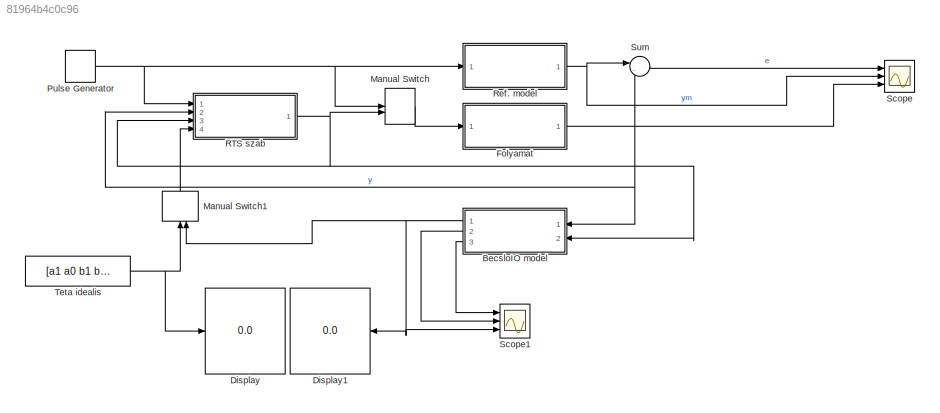
MODEL slx_81964b4c0c96
KIND model
CONFIG AbsTol = auto
CONFIG EnableMultiTasking = on
CONFIG FixedStep = 0.5
CONFIG MaxStep = auto
CONFIG MinStep = auto
CONFIG RelTol = 1e-3
CONFIG SampleTimeConstraint = Unconstrained
CONFIG Solver = FixedStepDiscrete
CONFIG SolverName = FixedStepDiscrete
CONFIG StartTime = 0.0
CONFIG StopTime = 100
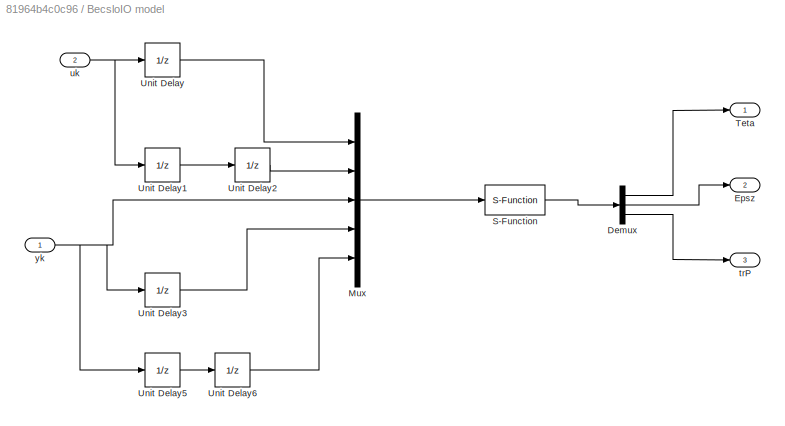
BLOCK [SubSystem] BecsloIO model
  Ports = [2, 3]
  RequestExecContextInheritance = off
BLOCK [Demux] BecsloIO model/Demux
  DisplayOption = bar
  Outputs = [4 1 1]
  Ports = [1, 3]
BLOCK [Outport] BecsloIO model/Epsz
  IconDisplay = Port number
  Port = 2
BLOCK [Mux] BecsloIO model/Mux
  DisplayOption = bar
  Inputs = 5
  Ports = [5, 1]
BLOCK [S-Function] BecsloIO model/S-Function
  EnableBusSupport = off
  FunctionName = BecsloIO
  Ports = [1, 1]
  SFcnIsStateOwnerBlock = off
  SFunctionDeploymentMode = off
BLOCK [Outport] BecsloIO model/Teta
  IconDisplay = Port number
BLOCK [UnitDelay] BecsloIO model/Unit Delay
  InputProcessing = Elements as channels (sample based)
  SampleTime = 0.5
BLOCK [UnitDelay] BecsloIO model/Unit Delay1
  InputProcessing = Elements as channels (sample based)
  SampleTime = 0.5
BLOCK [UnitDelay] BecsloIO model/Unit Delay2
  InputProcessing = Elements as channels (sample based)
  SampleTime = 0.5
BLOCK [UnitDelay] BecsloIO model/Unit Delay3
  InputProcessing = Elements as channels (sample based)
  SampleTime = 0.5
BLOCK [UnitDelay] BecsloIO model/Unit Delay5
  InputProcessing = Elements as channels (sample based)
  SampleTime = 0.5
BLOCK [UnitDelay] BecsloIO model/Unit Delay6
  InputProcessing = Elements as channels (sample based)
  SampleTime = 0.5
BLOCK [Outport] BecsloIO model/trP 
  IconDisplay = Port number
  Port = 3
BLOCK [Inport] BecsloIO model/uk
  IconDisplay = Port number
  Port = 2
BLOCK [Inport] BecsloIO model/yk
  IconDisplay = Port number
BLOCK [Display] Display
  Decimation = 1
  Ports = [1]
BLOCK [Display] Display1
  Decimation = 1
  Ports = [1]
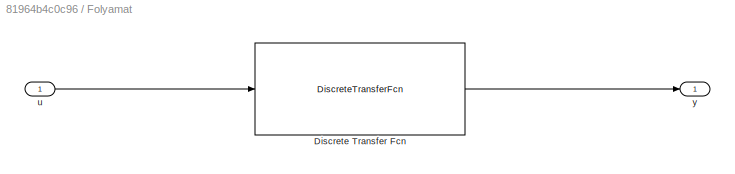
BLOCK [SubSystem] Folyamat
  Ports = [1, 1]
  RequestExecContextInheritance = off
BLOCK [DiscreteTransferFcn] Folyamat/Discrete Transfer Fcn
  Denominator = [1 a1 a0]
  InputPortMap = u0
  Numerator = [b1 b0]
  Ports = [1, 1]
  SampleTime = 0.5
BLOCK [Inport] Folyamat/u
  IconDisplay = Port number
BLOCK [Outport] Folyamat/y
  IconDisplay = Port number
BLOCK [ManualSwitch] Manual Switch
  CurrentSetting = 0
BLOCK [ManualSwitch] Manual Switch1
  CurrentSetting = 0
BLOCK [DiscretePulseGenerator] Pulse Generator
  Amplitude = 10
  Period = 100
  Ports = [0, 1]
  PulseWidth = 50
  SampleTime = 0.5
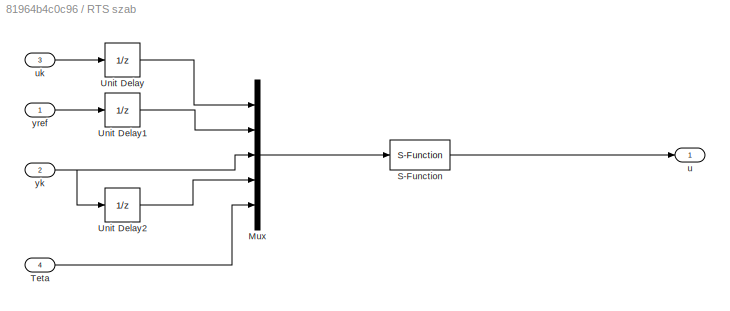
BLOCK [SubSystem] RTS szab
  Ports = [4, 1]
  RequestExecContextInheritance = off
BLOCK [Mux] RTS szab/Mux
  DisplayOption = bar
  Inputs = 5
  Ports = [5, 1]
BLOCK [S-Function] RTS szab/S-Function
  EnableBusSupport = off
  FunctionName = RTS_sf
  Ports = [1, 1]
  SFcnIsStateOwnerBlock = off
  SFunctionDeploymentMode = off
BLOCK [Inport] RTS szab/Teta
  IconDisplay = Port number
  Port = 4
BLOCK [UnitDelay] RTS szab/Unit Delay
  InputProcessing = Elements as channels (sample based)
  SampleTime = 0.5
BLOCK [UnitDelay] RTS szab/Unit Delay1
  InputProcessing = Elements as channels (sample based)
  SampleTime = 0.5
BLOCK [UnitDelay] RTS szab/Unit Delay2
  InputProcessing = Elements as channels (sample based)
  SampleTime = 0.5
BLOCK [Outport] RTS szab/u
  IconDisplay = Port number
BLOCK [Inport] RTS szab/uk
  IconDisplay = Port number
  Port = 3
BLOCK [Inport] RTS szab/yk
  IconDisplay = Port number
  Port = 2
BLOCK [Inport] RTS szab/yref
  IconDisplay = Port number
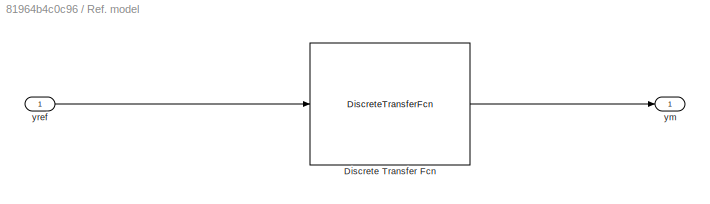
BLOCK [SubSystem] Ref. model
  Ports = [1, 1]
  RequestExecContextInheritance = off
BLOCK [DiscreteTransferFcn] Ref. model/Discrete Transfer Fcn
  Denominator = [1 am1 am0]
  InputPortMap = u0
  Numerator = [bm1 0]
  Ports = [1, 1]
  SampleTime = 0.5
BLOCK [Outport] Ref. model/ym
  IconDisplay = Port number
BLOCK [Inport] Ref. model/yref
  IconDisplay = Port number
BLOCK [Scope] Scope
  Floating = off
  NumInputPorts = 3
  Ports = [3]
  ScopeSpecificationString = Simulink.scopes.TimeScopeBlockCfg('CurrentConfiguration', extmgr.ConfigurationSet(extmgr.Configuration('Core','General UI',true),extmgr.Configuration('Core','Source UI',true),extmgr.Configuration('Sources','WiredSimulink',true,'DataLoggingLimitDataPoints',true,'DataLoggingSaveFormat','Array','DataLoggingDecimation','1','DataLoggingDecimateData',true),extmgr.Configuration('Visuals','Time Domain',tr...<+3001ch>
BLOCK [Scope] Scope1
  Floating = off
  NumInputPorts = 3
  Ports = [3]
  ScopeSpecificationString = C++SS(StrPVP('Location','[5, 48, 1925, 1039]'),StrPVP('Open','off'),MxPVP('AxesTitles',53,'struct(''axes1'',''%<SignalLabel>'',''axes2'',''%<SignalLabel>'',''axes3'',''%<SignalLabel>'')'),MxPVP('ScopeGraphics',56,'struct(''FigureColor'',''[0.5 0.5 0.5]'',''AxesColor'',''[0 0 0]'',''AxesTickColor'',''[1 1 1]'',''LineColors'',''[1 1 0;1 0 1;0 1 1;1 0 0;0 1 0;0 0 1]'',''LineStyles'',''-|-|-|-|-|-'','...<+330ch>
BLOCK [Sum] Sum
  IconShape = round
  InputSameDT = off
  Inputs = |-+
  OutDataTypeStr = Inherit: Inherit via internal rule
  Ports = [2, 1]
  SaturateOnIntegerOverflow = off
BLOCK [Constant] Teta idealis
  Value = [a1 a0 b1 b0]
LINE BecsloIO model/Demux:1 -> BecsloIO model/Teta:1
LINE BecsloIO model/Demux:2 -> BecsloIO model/Epsz:1
LINE BecsloIO model/Demux:3 -> BecsloIO model/trP :1
LINE BecsloIO model/Mux:1 -> BecsloIO model/S-Function:1
LINE BecsloIO model/S-Function:1 -> BecsloIO model/Demux:1
LINE BecsloIO model/Unit Delay1:1 -> BecsloIO model/Unit Delay2:1
LINE BecsloIO model/Unit Delay2:1 -> BecsloIO model/Mux:2
LINE BecsloIO model/Unit Delay3:1 -> BecsloIO model/Mux:4
LINE BecsloIO model/Unit Delay5:1 -> BecsloIO model/Unit Delay6:1
LINE BecsloIO model/Unit Delay6:1 -> BecsloIO model/Mux:5
LINE BecsloIO model/Unit Delay:1 -> BecsloIO model/Mux:1
NET BecsloIO model/uk:1 -> BecsloIO model/Unit Delay1:1, BecsloIO model/Unit Delay:1
NET BecsloIO model/yk:1 -> BecsloIO model/Mux:3, BecsloIO model/Unit Delay3:1, BecsloIO model/Unit Delay5:1
NET BecsloIO model:1 -> Display1:1, Manual Switch1:2, Scope1:3
LINE BecsloIO model:2 -> Scope1:2
LINE BecsloIO model:3 -> Scope1:1
LINE Folyamat/Discrete Transfer Fcn:1 -> Folyamat/y:1
LINE Folyamat/u:1 -> Folyamat/Discrete Transfer Fcn:1
NET Folyamat:1 -> BecsloIO model:1, RTS szab:2, Scope:3, Sum:2
LINE Manual Switch1:1 -> RTS szab:4
LINE Manual Switch:1 -> Folyamat:1
NET Pulse Generator:1 -> Manual Switch:1, RTS szab:1, Ref. model:1
LINE RTS szab/Mux:1 -> RTS szab/S-Function:1
LINE RTS szab/S-Function:1 -> RTS szab/u:1
LINE RTS szab/Teta:1 -> RTS szab/Mux:5
LINE RTS szab/Unit Delay1:1 -> RTS szab/Mux:2
LINE RTS szab/Unit Delay2:1 -> RTS szab/Mux:4
LINE RTS szab/Unit Delay:1 -> RTS szab/Mux:1
LINE RTS szab/uk:1 -> RTS szab/Unit Delay:1
NET RTS szab/yk:1 -> RTS szab/Mux:3, RTS szab/Unit Delay2:1
LINE RTS szab/yref:1 -> RTS szab/Unit Delay1:1
NET RTS szab:1 -> BecsloIO model:2, Manual Switch:2, RTS szab:3
LINE Ref. model/Discrete Transfer Fcn:1 -> Ref. model/ym:1
LINE Ref. model/yref:1 -> Ref. model/Discrete Transfer Fcn:1
NET Ref. model:1 -> Scope:2, Sum:1
LINE Sum:1 -> Scope:1
NET Teta idealis:1 -> Display:1, Manual Switch1:1
note: NET lines group one-source signal fan-out (src -> all destinations, sorted); 1:1 wires keep LINE
